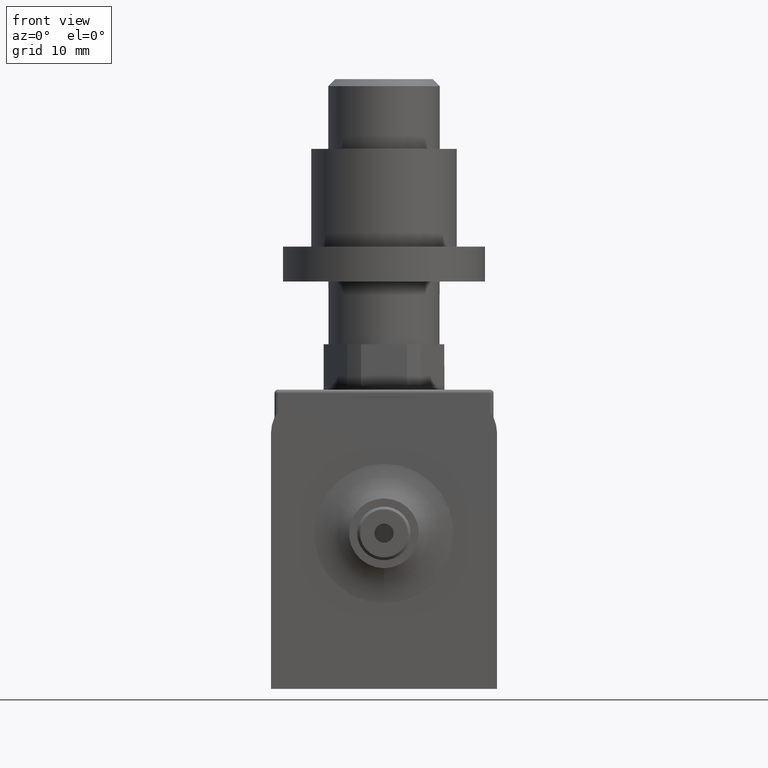
[diagram: clean part render]
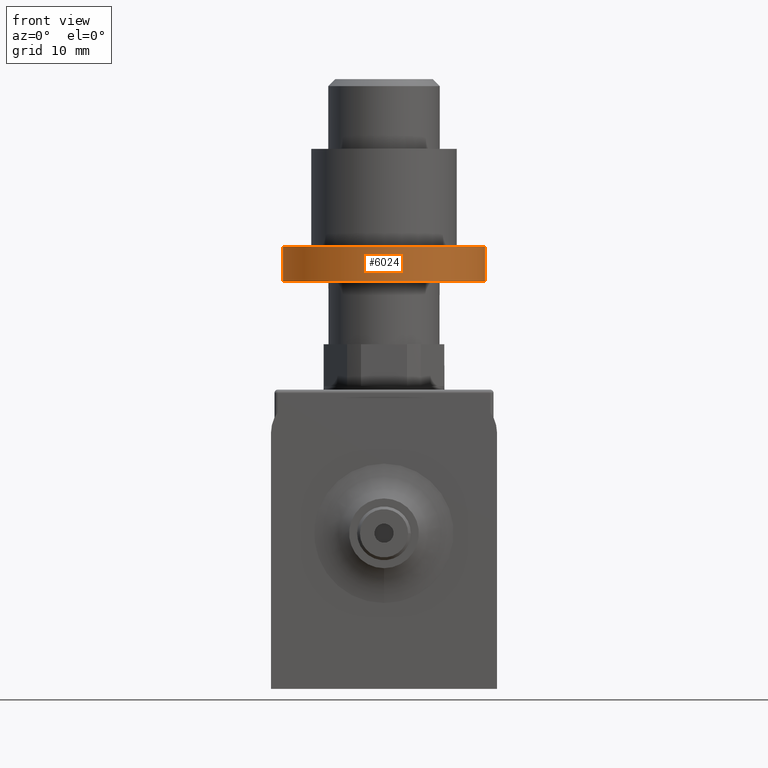
[diagram: same view with one face highlighted and labeled with its STEP entity id]
A machine part, front view. The second image highlights one B-rep face of the part: STEP entity #6024.
In plain terms, the highlighted cylindrical surface (bore or boss wall) has radius 14.5 mm, axis along (0, 0, -1).
Its self-contained STEP definition (entity closure, byte-faithful):
#135 = FACE_OUTER_BOUND ( 'NONE', #13634, .T. ) ;
#674 = DIRECTION ( 'NONE',  ( 0.000000000000000000, 1.000000000000000000, 2.392722035830078479E-16 ) ) ;
#1498 = AXIS2_PLACEMENT_3D ( 'NONE', #6104, #8528, #13228 ) ;
#2534 = VERTEX_POINT ( 'NONE', #12758 ) ;
#2790 = AXIS2_PLACEMENT_3D ( 'NONE', #11412, #7834, #674 ) ;
#4346 = DIRECTION ( 'NONE',  ( 0.000000000000000000, 1.000000000000000000, 2.392722035830078479E-16 ) ) ;
#6024 = ADVANCED_FACE ( 'NONE', ( #135, #8534 ), #10204, .T. ) ;
#6104 = CARTESIAN_POINT ( 'NONE',  ( 0.000000000000000000, 2.877919977996280715E-15, -4.500000000000003553 ) ) ;
#7327 = ORIENTED_EDGE ( 'NONE', *, *, #8558, .T. ) ;
#7716 = CIRCLE ( 'NONE', #1498, 14.50000000000000178 ) ;
#7724 = VERTEX_POINT ( 'NONE', #15296 ) ;
#7834 = DIRECTION ( 'NONE',  ( -0.000000000000000000, 2.755455298081544778E-16, -1.000000000000000000 ) ) ;
#7968 = EDGE_CURVE ( 'NONE', #7724, #7724, #10159, .T. ) ;
#8200 = ORIENTED_EDGE ( 'NONE', *, *, #7968, .F. ) ;
#8528 = DIRECTION ( 'NONE',  ( -0.000000000000000000, 2.755455298081544778E-16, -1.000000000000000000 ) ) ;
#8534 = FACE_OUTER_BOUND ( 'NONE', #9677, .T. ) ;
#8558 = EDGE_CURVE ( 'NONE', #2534, #2534, #7716, .T. ) ;
#9108 = CARTESIAN_POINT ( 'NONE',  ( 0.000000000000000000, 4.255647627037051920E-15, -9.500000000000008882 ) ) ;
#9677 = EDGE_LOOP ( 'NONE', ( #8200 ) ) ;
#10159 = CIRCLE ( 'NONE', #2790, 14.50000000000000178 ) ;
#10204 = CYLINDRICAL_SURFACE ( 'NONE', #13831, 14.50000000000000178 ) ;
#10405 = DIRECTION ( 'NONE',  ( -0.000000000000000000, 2.755455298081544778E-16, -1.000000000000000000 ) ) ;
#11412 = CARTESIAN_POINT ( 'NONE',  ( 0.000000000000000000, 4.255647627037052709E-15, -9.500000000000008882 ) ) ;
#12758 = CARTESIAN_POINT ( 'NONE',  ( 0.000000000000000000, 14.50000000000000533, -4.500000000000000000 ) ) ;
#13228 = DIRECTION ( 'NONE',  ( 0.000000000000000000, 1.000000000000000000, 2.990902544787598099E-16 ) ) ;
#13634 = EDGE_LOOP ( 'NONE', ( #7327 ) ) ;
#13831 = AXIS2_PLACEMENT_3D ( 'NONE', #9108, #10405, #4346 ) ;
#15296 = CARTESIAN_POINT ( 'NONE',  ( 0.000000000000000000, 14.50000000000000533, -9.500000000000005329 ) ) ;